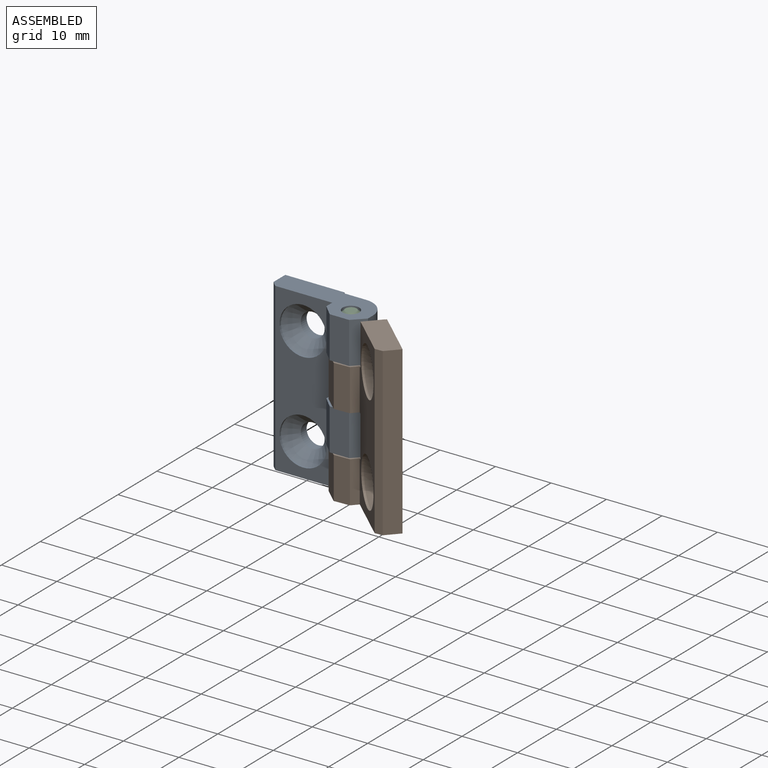
[diagram: assembled view]
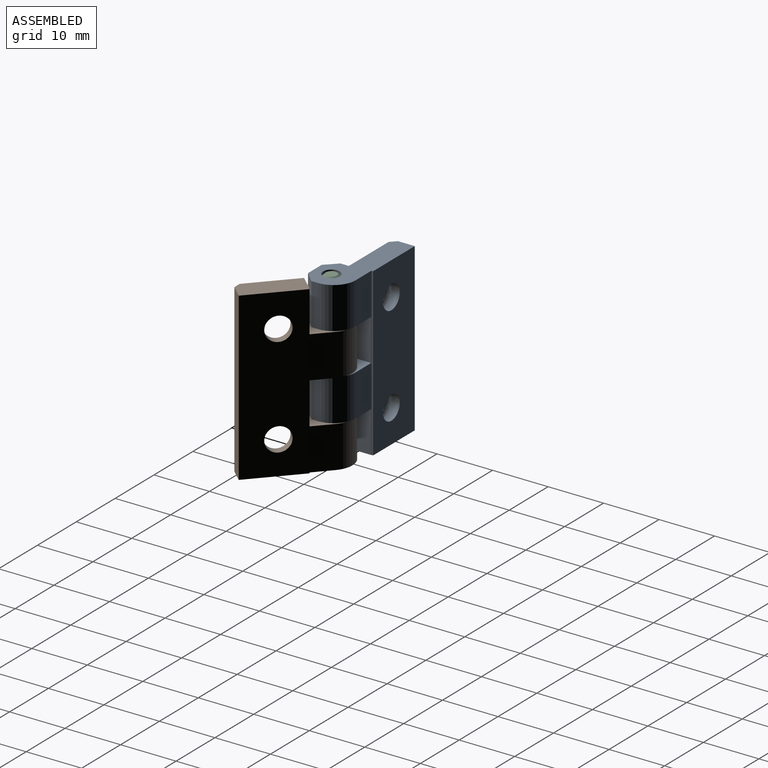
[diagram: assembled view, second angle]
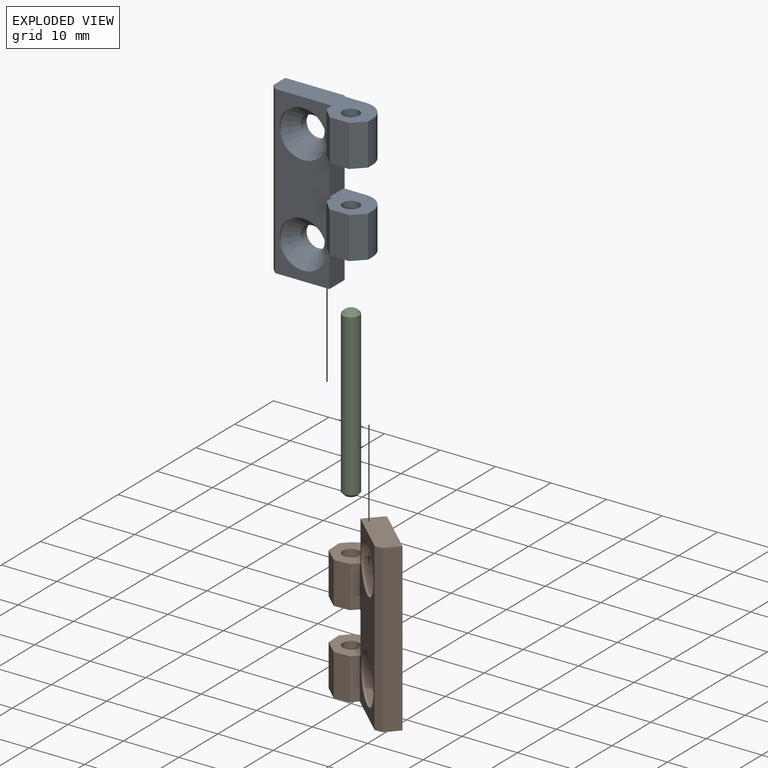
[diagram: exploded view]
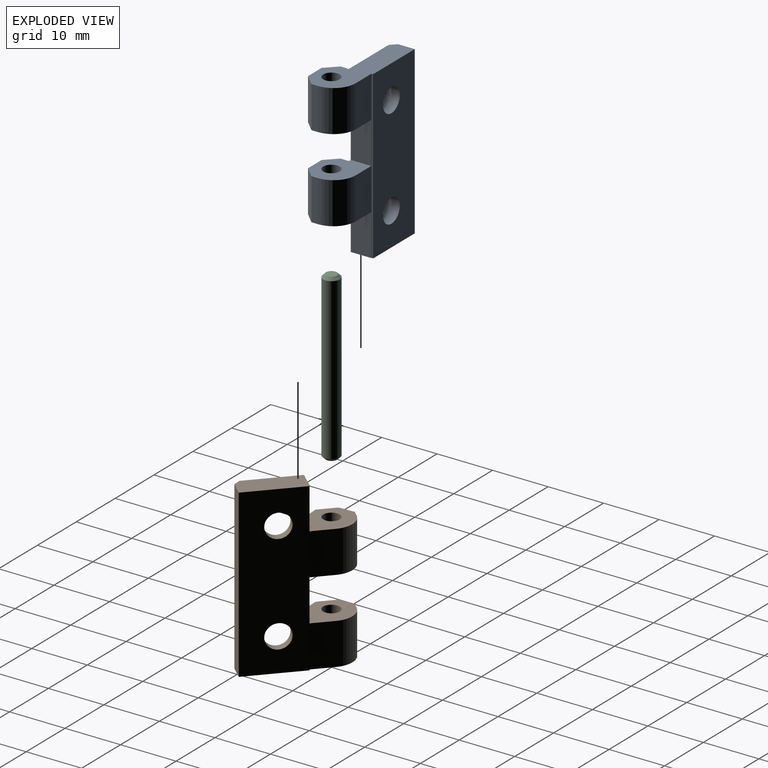
[diagram: exploded view, second angle]
ASSEMBLY  parts=3 mates=2
PART A: 33 faces, bbox 18.8x7.5x30 mm
  f0: plane 30x10.25mm, normal (0,-1,0), area 186.5mm2, adj f1,f2,f15,f17,f20,f21,f22,f23
  f1: plane 7.5x1.5mm, normal (-1,0,0), area 11.2mm2, adj f0,f3,f22,f23
  f2: plane 7.5x1.5mm, normal (-1,0,0), area 11.2mm2, adj f0,f4,f20,f24
  f3: plane 7.5x2mm, normal (-0.71,-0.71,0), area 21.2mm2, adj f1,f5,f22,f23
  f4: plane 7.5x2mm, normal (-0.71,-0.71,0), area 21.2mm2, adj f2,f6,f20,f24
  f5: plane 7.5x3.5mm, normal (0,-1,0), area 26.2mm2, adj f3,f7,f22,f23
  f6: plane 7.5x3.5mm, normal (0,-1,0), area 26.2mm2, adj f4,f8,f20,f24
  f7: plane 7.5x2mm, normal (0.71,-0.71,0), area 21.2mm2, adj f5,f9,f22,f23
  f8: plane 7.5x2mm, normal (0.71,-0.71,0), area 21.2mm2, adj f6,f10,f20,f24
  f9: plane 7.5x1.2mm, normal (1,0,0), area 9mm2, adj f7,f11,f22,f23
  f10: plane 7.5x1.2mm, normal (1,0,0), area 9mm2, adj f8,f12,f20,f24
  f11: cylinder r=4mm len=7.5mm, axis (0,0,1), area 47.1mm2, adj f9,f13,f22,f23
  f12: cylinder r=4mm len=7.5mm, axis (0,0,1), area 47.1mm2, adj f10,f13,f20,f24
  f13: plane 30x4.05mm, normal (0,1,0), area 61.5mm2, adj f11,f12,f15,f18,f20,f21,f22,f23
  f14: cylinder r=1.5mm len=7.5mm, axis (0,0,1), area 70.7mm2, adj f20,f24
  f15: plane 10.75x4mm, normal (0,0,-1), area 42.5mm2, adj f0,f13,f16,f17,f18,f19,f21
  f16: plane 30x3mm, normal (-1,0,0), area 90mm2, adj f15,f17,f19,f20
  f17: plane 30x1mm, normal (-0.71,-0.71,0), area 42.4mm2, adj f0,f15,f16,f20
  f18: plane 30x0.3mm, normal (1,0,0), area 9mm2, adj f13,f15,f19,f20
  f19: plane 30x10.7mm, normal (0,1,0), area 292mm2, adj f15,f16,f18,f20,f27,f30
  f20: plane 18.75x7.5mm, normal (0,0,1), area 83.8mm2, adj f0,f2,f4,f6,f8,f10,f12,f13
  f21: plane 7.5x3.7mm, normal (1,0,0), area 27.7mm2, adj f0,f13,f15,f22
  f22: plane 8x7.2mm, normal (0,0,-1), area 41.3mm2, adj f0,f1,f3,f5,f7,f9,f11,f13
  f23: plane 8x7.2mm, normal (0,0,1), area 41.3mm2, adj f0,f1,f3,f5,f7,f9,f11,f13
  f24: plane 8x7.2mm, normal (0,0,-1), area 41.3mm2, adj f0,f2,f4,f6,f8,f10,f12,f13
  f25: plane 7.5x3.7mm, normal (1,0,0), area 27.7mm2, adj f0,f13,f23,f24
  f26: cylinder r=1.5mm len=7.5mm, axis (0,0,1), area 70.7mm2, adj f22,f23
  f27: cylinder r=2.15mm len=4.3mm, axis (0,-1,0), area 20.3mm2, adj f19,f28
  f28: cone r=2.15mm half-angle=45deg, axis (0,-1,0), area 59.7mm2, adj f27,f29
  f29: cylinder r=4.25mm len=8.5mm, axis (0,-1,0), area 10.7mm2, adj f0,f28
  f30: cylinder r=2.15mm len=4.3mm, axis (0,-1,0), area 20.3mm2, adj f19,f31
  f31: cone r=2.15mm half-angle=45deg, axis (0,-1,0), area 59.7mm2, adj f30,f32
  f32: cylinder r=4.25mm len=8.5mm, axis (0,-1,0), area 10.7mm2, adj f0,f31
PART B: 33 faces, bbox 18.8x7.5x30 mm
  f0: cylinder r=4mm len=7.5mm, axis (0,0,1), area 47.1mm2, adj f2,f14,f20,f23
  f1: cylinder r=4mm len=7.5mm, axis (0,0,1), area 47.1mm2, adj f3,f14,f22,f24
  f2: plane 7.5x1.2mm, normal (-1,0,0), area 9mm2, adj f0,f4,f20,f23
  f3: plane 7.5x1.2mm, normal (-1,0,0), area 9mm2, adj f1,f5,f22,f24
  f4: plane 7.5x2mm, normal (-0.71,-0.71,0), area 21.2mm2, adj f2,f6,f20,f23
  f5: plane 7.5x2mm, normal (-0.71,-0.71,0), area 21.2mm2, adj f3,f7,f22,f24
  f6: plane 7.5x3.5mm, normal (0,-1,0), area 26.2mm2, adj f4,f8,f20,f23
  f7: plane 7.5x3.5mm, normal (0,-1,0), area 26.2mm2, adj f5,f9,f22,f24
  f8: plane 7.5x2mm, normal (0.71,-0.71,0), area 21.2mm2, adj f6,f10,f20,f23
  f9: plane 7.5x2mm, normal (0.71,-0.71,0), area 21.2mm2, adj f7,f11,f22,f24
  f10: plane 7.5x1.5mm, normal (1,0,0), area 11.2mm2, adj f8,f12,f20,f23
  f11: plane 7.5x1.5mm, normal (1,0,0), area 11.2mm2, adj f9,f12,f22,f24
  f12: plane 30x10.25mm, normal (0,-1,0), area 186.5mm2, adj f10,f11,f15,f16,f20,f21,f22,f23
  f13: cylinder r=1.5mm len=7.5mm, axis (0,0,1), area 70.7mm2, adj f20,f23
  f14: plane 30x4.05mm, normal (0,1,0), area 61.5mm2, adj f0,f1,f15,f19,f20,f21,f22,f23
  f15: plane 10.75x4mm, normal (0,0,1), area 42.5mm2, adj f12,f14,f16,f17,f18,f19,f21
  f16: plane 30x1mm, normal (0.71,-0.71,0), area 42.4mm2, adj f12,f15,f17,f20
  f17: plane 30x3mm, normal (1,0,0), area 90mm2, adj f15,f16,f18,f20
  f18: plane 30x10.7mm, normal (0,1,0), area 292mm2, adj f15,f17,f19,f20,f27,f30
  f19: plane 30x0.3mm, normal (-1,0,0), area 9mm2, adj f14,f15,f18,f20
  f20: plane 18.75x7.5mm, normal (0,0,-1), area 83.8mm2, adj f0,f2,f4,f6,f8,f10,f12,f13
  f21: plane 7.5x3.7mm, normal (-1,0,0), area 27.7mm2, adj f12,f14,f15,f22
  f22: plane 8x7.2mm, normal (0,0,1), area 41.3mm2, adj f1,f3,f5,f7,f9,f11,f12,f14
  f23: plane 8x7.2mm, normal (0,0,1), area 41.3mm2, adj f0,f2,f4,f6,f8,f10,f12,f13
  f24: plane 8x7.2mm, normal (0,0,-1), area 41.3mm2, adj f1,f3,f5,f7,f9,f11,f12,f14
  f25: plane 7.5x3.7mm, normal (-1,0,0), area 27.7mm2, adj f12,f14,f23,f24
  f26: cylinder r=1.5mm len=7.5mm, axis (0,0,1), area 70.7mm2, adj f22,f24
  f27: cylinder r=2.15mm len=4.3mm, axis (0,-1,0), area 20.3mm2, adj f18,f28
  f28: cone r=2.15mm half-angle=45deg, axis (0,-1,0), area 59.7mm2, adj f27,f29
  f29: cylinder r=4.25mm len=8.5mm, axis (0,-1,0), area 10.7mm2, adj f12,f28
  f30: cylinder r=2.15mm len=4.3mm, axis (0,-1,0), area 20.3mm2, adj f18,f31
  f31: cone r=2.15mm half-angle=45deg, axis (0,-1,0), area 59.7mm2, adj f30,f32
  f32: cylinder r=4.25mm len=8.5mm, axis (0,-1,0), area 10.7mm2, adj f12,f31
PART C: 5 faces, bbox 3x3x30 mm
  f0: plane 2x2mm, normal (0,0,1), area 3.1mm2, adj f1
  f1: cone r=1mm half-angle=45deg, axis (0,0,-1), area 5.6mm2, adj f0,f2
  f2: cylinder r=1.5mm len=29mm, axis (0,0,-1), area 273.3mm2, adj f1,f3
  f3: cone r=1.5mm half-angle=45deg, axis (0,0,1), area 5.6mm2, adj f2,f4
  f4: plane 2x2mm, normal (0,0,-1), area 3.1mm2, adj f3
PLACE A at identity
PLACE B rot(axis=(0,0,-1),42.6deg) t=(0,0,0)mm
PLACE C at identity
MATE fastened C.f1 <-> A.f14  axis (0,0,1) through (0,0,0)mm
MATE revolute B.f13 <-> C.f1  axis (0,0,1) through (0,0,-30)mm
